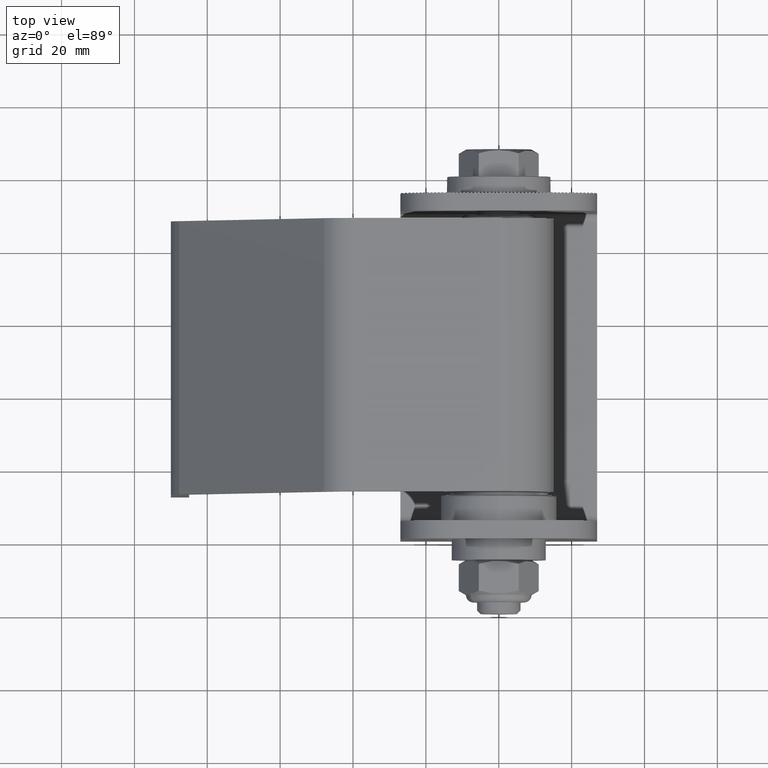
[diagram: clean part render]
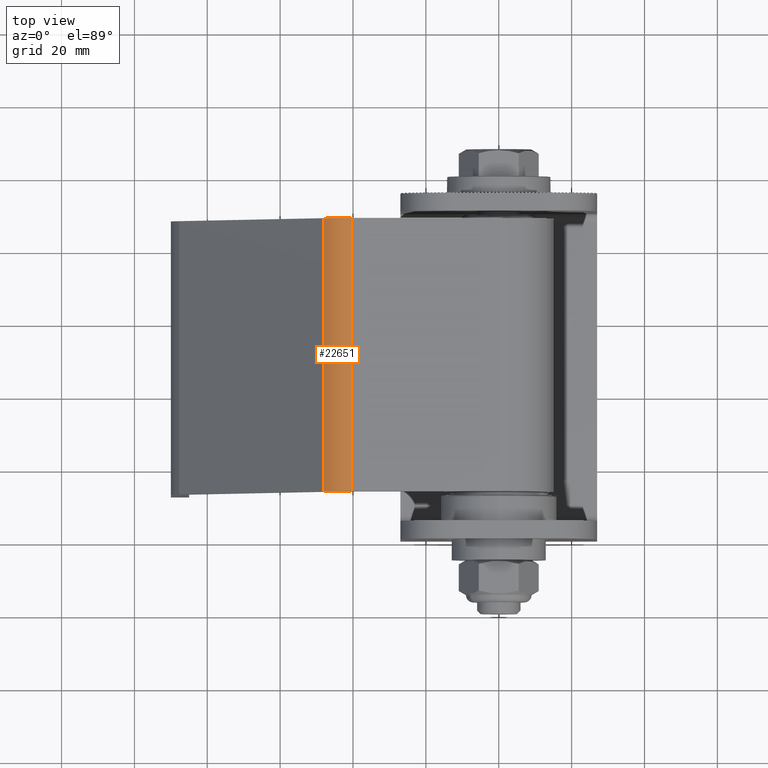
[diagram: same view with one face highlighted and labeled with its STEP entity id]
A machine part, top view. The second image highlights one B-rep face of the part: STEP entity #22651.
In plain terms, the highlighted cylindrical surface (edge-blend (fillet) strip) has radius 10 mm, axis along (0, 1, -0).
Its self-contained STEP definition (entity closure, byte-faithful):
#699 = AXIS2_PLACEMENT_3D ( 'NONE', #20258, #7537, #14023 ) ;
#1636 = VERTEX_POINT ( 'NONE', #4722 ) ;
#2023 = CARTESIAN_POINT ( 'NONE',  ( -40.33016289040934100, 75.00000000000000000, -14.99999999999999500 ) ) ;
#2081 = CARTESIAN_POINT ( 'NONE',  ( -47.99773962034038300, 0.0000000000000000000, -11.41936656459342300 ) ) ;
#2083 = CARTESIAN_POINT ( 'NONE',  ( -47.99773962034038300, 75.00000000000000000, -11.41936656459342300 ) ) ;
#2407 = CARTESIAN_POINT ( 'NONE',  ( -40.33016289040934100, 75.00000000000000000, -4.999999999999993800 ) ) ;
#2808 = CARTESIAN_POINT ( 'NONE',  ( -47.99773962034038300, 75.00000000000000000, -11.41936656459342100 ) ) ;
#3101 = ORIENTED_EDGE ( 'NONE', *, *, #6104, .F. ) ;
#3851 = ORIENTED_EDGE ( 'NONE', *, *, #6345, .F. ) ;
#4722 = CARTESIAN_POINT ( 'NONE',  ( -40.33016289040932600, 0.0000000000000000000, -14.99999999999999500 ) ) ;
#5526 = LINE ( 'NONE', #2023, #9473 ) ;
#5847 = FACE_OUTER_BOUND ( 'NONE', #9635, .T. ) ;
#6104 = EDGE_CURVE ( 'NONE', #1636, #6414, #5526, .T. ) ;
#6345 = EDGE_CURVE ( 'NONE', #6414, #10123, #26173, .T. ) ;
#6414 = VERTEX_POINT ( 'NONE', #11757 ) ;
#7230 = EDGE_CURVE ( 'NONE', #10123, #24383, #26563, .T. ) ;
#7537 = DIRECTION ( 'NONE',  ( -0.0000000000000000000, -1.000000000000000000, -0.0000000000000000000 ) ) ;
#7704 = ORIENTED_EDGE ( 'NONE', *, *, #10880, .F. ) ;
#8019 = ORIENTED_EDGE ( 'NONE', *, *, #7230, .F. ) ;
#9473 = VECTOR ( 'NONE', #16714, 1000.000000000000000 ) ;
#9635 = EDGE_LOOP ( 'NONE', ( #3851, #3101, #7704, #8019 ) ) ;
#10123 = VERTEX_POINT ( 'NONE', #2083 ) ;
#10521 = VECTOR ( 'NONE', #19670, 1000.000000000000000 ) ;
#10694 = DIRECTION ( 'NONE',  ( 0.0000000000000000000, -1.000000000000000000, 0.0000000000000000000 ) ) ;
#10880 = EDGE_CURVE ( 'NONE', #24383, #1636, #21830, .T. ) ;
#11757 = CARTESIAN_POINT ( 'NONE',  ( -40.33016289040932600, 75.00000000000000000, -14.99999999999999500 ) ) ;
#12746 = AXIS2_PLACEMENT_3D ( 'NONE', #2407, #10694, #25330 ) ;
#13761 = DIRECTION ( 'NONE',  ( 0.0000000000000000000, 1.000000000000000000, 0.0000000000000000000 ) ) ;
#14023 = DIRECTION ( 'NONE',  ( 0.0000000000000000000, 0.0000000000000000000, 1.000000000000000000 ) ) ;
#16714 = DIRECTION ( 'NONE',  ( -0.0000000000000000000, 1.000000000000000000, -0.0000000000000000000 ) ) ;
#17826 = AXIS2_PLACEMENT_3D ( 'NONE', #21885, #13761, #26295 ) ;
#19670 = DIRECTION ( 'NONE',  ( 0.0000000000000000000, -1.000000000000000000, 0.0000000000000000000 ) ) ;
#20258 = CARTESIAN_POINT ( 'NONE',  ( -40.33016289040934100, 0.0000000000000000000, -4.999999999999993800 ) ) ;
#21830 = CIRCLE ( 'NONE', #699, 10.00000000000000000 ) ;
#21885 = CARTESIAN_POINT ( 'NONE',  ( -40.33016289040934100, 75.00000000000000000, -4.999999999999993800 ) ) ;
#22651 = ADVANCED_FACE ( 'NONE', ( #5847 ), #22888, .T. ) ;
#22888 = CYLINDRICAL_SURFACE ( 'NONE', #12746, 10.00000000000000000 ) ;
#24383 = VERTEX_POINT ( 'NONE', #2081 ) ;
#25330 = DIRECTION ( 'NONE',  ( 0.0000000000000000000, 0.0000000000000000000, -1.000000000000000000 ) ) ;
#26173 = CIRCLE ( 'NONE', #17826, 10.00000000000000000 ) ;
#26295 = DIRECTION ( 'NONE',  ( 0.0000000000000000000, 0.0000000000000000000, 1.000000000000000000 ) ) ;
#26563 = LINE ( 'NONE', #2808, #10521 ) ;